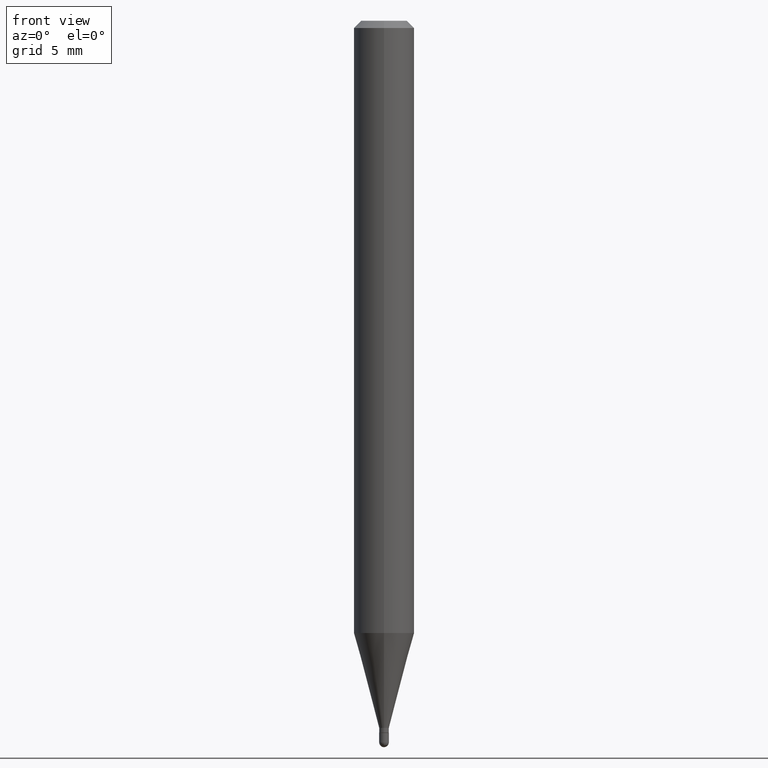
[diagram: clean part render]
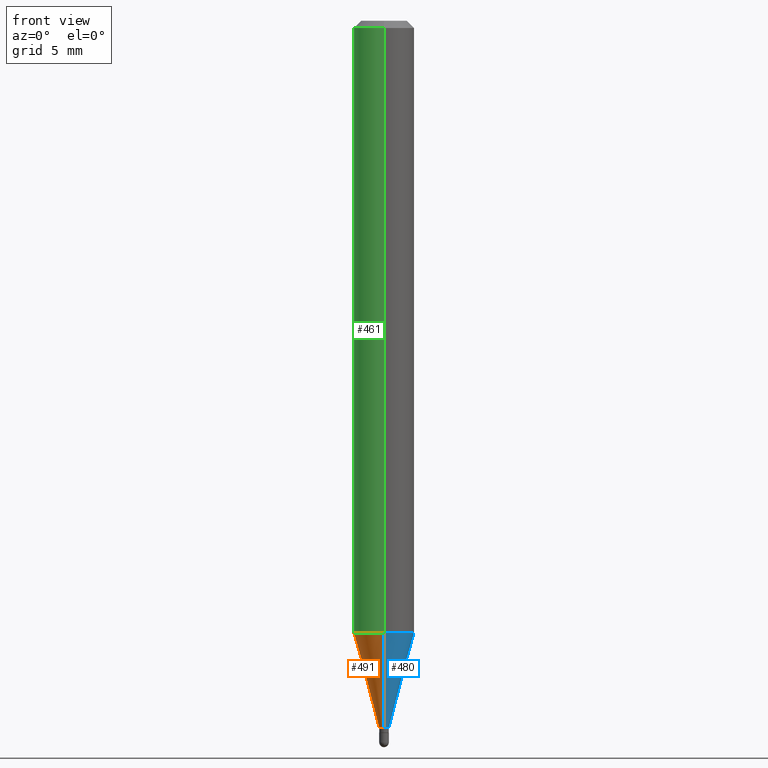
[diagram: same view with three faces highlighted in distinct colors, each labeled with its STEP entity id]
A machine part, front view with three faces highlighted in distinct colors.
Their STEP definitions:

[orange] entity #491 — the highlighted conical surface has half-angle 15 deg.
#4 = AXIS2_PLACEMENT_3D ( 'NONE', #403, #311, #114 ) ;
#10 = CIRCLE ( 'NONE', #425, 0.009999999999999923880 ) ;
#24 = VERTEX_POINT ( 'NONE', #48 ) ;
#48 = CARTESIAN_POINT ( 'NONE',  ( 4.440892098500932831E-16, 0.06249999999999556605, -1.264067332602634819 ) ) ;
#59 = EDGE_CURVE ( 'NONE', #120, #24, #395, .T. ) ;
#61 = DIRECTION ( 'NONE',  ( -2.445480303060877688E-29, 3.491464874662722963E-15, 1.000000000000000000 ) ) ;
#98 = DIRECTION ( 'NONE',  ( -6.982962677686265922E-15, -1.000000000000000000, 4.370956789862821150E-15 ) ) ;
#101 = EDGE_CURVE ( 'NONE', #24, #324, #339, .T. ) ;
#114 = DIRECTION ( 'NONE',  ( -6.982962677686265922E-15, -1.000000000000000000, 0.000000000000000000 ) ) ;
#120 = VERTEX_POINT ( 'NONE', #131 ) ;
#125 = ORIENTED_EDGE ( 'NONE', *, *, #101, .F. ) ;
#129 = VECTOR ( 'NONE', #246, 39.37007874015748854 ) ;
#131 = CARTESIAN_POINT ( 'NONE',  ( 2.575717417130694811E-16, 0.009999999999994827263, -1.459999999999999964 ) ) ;
#144 = VECTOR ( 'NONE', #319, 39.37007874015748143 ) ;
#147 = ORIENTED_EDGE ( 'NONE', *, *, #351, .T. ) ;
#158 = CARTESIAN_POINT ( 'NONE',  ( 7.105427357604516135E-17, 0.009999999999994827263, -1.459999999999999964 ) ) ;
#175 = CARTESIAN_POINT ( 'NONE',  ( -6.982962677682643127E-17, -0.01000000000000502050, -1.459999999999999964 ) ) ;
#184 = VERTEX_POINT ( 'NONE', #175 ) ;
#211 = CARTESIAN_POINT ( 'NONE',  ( -6.982962677682643127E-17, -0.01000000000000502050, -1.459999999999999964 ) ) ;
#224 = EDGE_CURVE ( 'NONE', #184, #324, #404, .T. ) ;
#227 = EDGE_LOOP ( 'NONE', ( #344, #147, #236, #125 ) ) ;
#236 = ORIENTED_EDGE ( 'NONE', *, *, #224, .T. ) ;
#246 = DIRECTION ( 'NONE',  ( -1.807323732225332111E-15, -0.2588190451025184635, 0.9659258262890689783 ) ) ;
#311 = DIRECTION ( 'NONE',  ( -2.445480303060877688E-29, 3.491464874662722963E-15, 1.000000000000000000 ) ) ;
#319 = DIRECTION ( 'NONE',  ( 1.839019923739602287E-15, 0.2588190451025252359, 0.9659258262890670910 ) ) ;
#324 = VERTEX_POINT ( 'NONE', #418 ) ;
#339 = CIRCLE ( 'NONE', #489, 0.06250000000000000000 ) ;
#344 = ORIENTED_EDGE ( 'NONE', *, *, #59, .F. ) ;
#349 = DIRECTION ( 'NONE',  ( -6.982962677686265922E-15, -1.000000000000000000, 0.000000000000000000 ) ) ;
#351 = EDGE_CURVE ( 'NONE', #120, #184, #10, .T. ) ;
#368 = CARTESIAN_POINT ( 'NONE',  ( 3.091251763622446182E-29, -4.413446690990699411E-15, -1.264067332602634597 ) ) ;
#395 = LINE ( 'NONE', #158, #144 ) ;
#403 = CARTESIAN_POINT ( 'NONE',  ( 3.570401242468881823E-29, -5.097538717007575896E-15, -1.459999999999999964 ) ) ;
#404 = LINE ( 'NONE', #211, #129 ) ;
#418 = CARTESIAN_POINT ( 'NONE',  ( -4.364351673553606573E-16, -0.06250000000000441314, -1.264067332602634375 ) ) ;
#420 = CARTESIAN_POINT ( 'NONE',  ( 3.570401242468881823E-29, -5.097538717007575896E-15, -1.459999999999999964 ) ) ;
#425 = AXIS2_PLACEMENT_3D ( 'NONE', #420, #455, #349 ) ;
#442 = CONICAL_SURFACE ( 'NONE', #4, 0.009999999999999923880, 0.2617993877991505736 ) ;
#455 = DIRECTION ( 'NONE',  ( -2.445480303060877688E-29, 3.491464874662722963E-15, 1.000000000000000000 ) ) ;
#481 = FACE_OUTER_BOUND ( 'NONE', #227, .T. ) ;
#489 = AXIS2_PLACEMENT_3D ( 'NONE', #368, #61, #98 ) ;
#491 = ADVANCED_FACE ( 'NONE', ( #481 ), #442, .T. ) ;

[blue] entity #480 — the highlighted conical surface has half-angle 15 deg.
#21 = AXIS2_PLACEMENT_3D ( 'NONE', #292, #93, #332 ) ;
#24 = VERTEX_POINT ( 'NONE', #48 ) ;
#37 = EDGE_LOOP ( 'NONE', ( #379, #274, #67, #499 ) ) ;
#48 = CARTESIAN_POINT ( 'NONE',  ( 4.440892098500932831E-16, 0.06249999999999556605, -1.264067332602634819 ) ) ;
#59 = EDGE_CURVE ( 'NONE', #120, #24, #395, .T. ) ;
#67 = ORIENTED_EDGE ( 'NONE', *, *, #118, .F. ) ;
#93 = DIRECTION ( 'NONE',  ( -2.445480303060877688E-29, 3.491464874662722963E-15, 1.000000000000000000 ) ) ;
#110 = CARTESIAN_POINT ( 'NONE',  ( 3.570401242468881823E-29, -5.097538717007575896E-15, -1.459999999999999964 ) ) ;
#116 = DIRECTION ( 'NONE',  ( -6.982962677686265922E-15, -1.000000000000000000, 0.000000000000000000 ) ) ;
#118 = EDGE_CURVE ( 'NONE', #324, #24, #244, .T. ) ;
#120 = VERTEX_POINT ( 'NONE', #131 ) ;
#129 = VECTOR ( 'NONE', #246, 39.37007874015748854 ) ;
#131 = CARTESIAN_POINT ( 'NONE',  ( 2.575717417130694811E-16, 0.009999999999994827263, -1.459999999999999964 ) ) ;
#144 = VECTOR ( 'NONE', #319, 39.37007874015748143 ) ;
#158 = CARTESIAN_POINT ( 'NONE',  ( 7.105427357604516135E-17, 0.009999999999994827263, -1.459999999999999964 ) ) ;
#175 = CARTESIAN_POINT ( 'NONE',  ( -6.982962677682643127E-17, -0.01000000000000502050, -1.459999999999999964 ) ) ;
#184 = VERTEX_POINT ( 'NONE', #175 ) ;
#211 = CARTESIAN_POINT ( 'NONE',  ( -6.982962677682643127E-17, -0.01000000000000502050, -1.459999999999999964 ) ) ;
#224 = EDGE_CURVE ( 'NONE', #184, #324, #404, .T. ) ;
#244 = CIRCLE ( 'NONE', #21, 0.06250000000000000000 ) ;
#246 = DIRECTION ( 'NONE',  ( -1.807323732225332111E-15, -0.2588190451025184635, 0.9659258262890689783 ) ) ;
#247 = FACE_OUTER_BOUND ( 'NONE', #37, .T. ) ;
#274 = ORIENTED_EDGE ( 'NONE', *, *, #59, .T. ) ;
#292 = CARTESIAN_POINT ( 'NONE',  ( 3.091251763622446182E-29, -4.413446690990699411E-15, -1.264067332602634597 ) ) ;
#300 = DIRECTION ( 'NONE',  ( -2.445480303060877688E-29, 3.491464874662722963E-15, 1.000000000000000000 ) ) ;
#312 = EDGE_CURVE ( 'NONE', #184, #120, #355, .T. ) ;
#315 = CONICAL_SURFACE ( 'NONE', #341, 0.009999999999999923880, 0.2617993877991505736 ) ;
#319 = DIRECTION ( 'NONE',  ( 1.839019923739602287E-15, 0.2588190451025252359, 0.9659258262890670910 ) ) ;
#324 = VERTEX_POINT ( 'NONE', #418 ) ;
#329 = DIRECTION ( 'NONE',  ( -2.445480303060877688E-29, 3.491464874662722963E-15, 1.000000000000000000 ) ) ;
#330 = AXIS2_PLACEMENT_3D ( 'NONE', #110, #300, #377 ) ;
#332 = DIRECTION ( 'NONE',  ( -6.982962677686265922E-15, -1.000000000000000000, 4.370956789862821150E-15 ) ) ;
#341 = AXIS2_PLACEMENT_3D ( 'NONE', #471, #329, #116 ) ;
#355 = CIRCLE ( 'NONE', #330, 0.009999999999999923880 ) ;
#377 = DIRECTION ( 'NONE',  ( -6.982962677686265922E-15, -1.000000000000000000, 0.000000000000000000 ) ) ;
#379 = ORIENTED_EDGE ( 'NONE', *, *, #312, .T. ) ;
#395 = LINE ( 'NONE', #158, #144 ) ;
#404 = LINE ( 'NONE', #211, #129 ) ;
#418 = CARTESIAN_POINT ( 'NONE',  ( -4.364351673553606573E-16, -0.06250000000000441314, -1.264067332602634375 ) ) ;
#471 = CARTESIAN_POINT ( 'NONE',  ( 3.570401242468881823E-29, -5.097538717007575896E-15, -1.459999999999999964 ) ) ;
#480 = ADVANCED_FACE ( 'NONE', ( #247 ), #315, .T. ) ;
#499 = ORIENTED_EDGE ( 'NONE', *, *, #224, .F. ) ;

[green] entity #461 — the highlighted cylindrical surface (edge-blend (fillet) strip) has radius 1.5875 mm, axis along (-0, 0, 1).
#24 = VERTEX_POINT ( 'NONE', #48 ) ;
#35 = EDGE_LOOP ( 'NONE', ( #109, #225, #151, #221 ) ) ;
#42 = CARTESIAN_POINT ( 'NONE',  ( 4.440892098500936776E-16, 0.06249999999999993755, -0.01500000000000022669 ) ) ;
#43 = VERTEX_POINT ( 'NONE', #42 ) ;
#48 = CARTESIAN_POINT ( 'NONE',  ( 4.440892098500932831E-16, 0.06249999999999556605, -1.264067332602634819 ) ) ;
#51 = DIRECTION ( 'NONE',  ( -6.982962677686265922E-15, -1.000000000000000000, 3.491464874662722963E-15 ) ) ;
#55 = LINE ( 'NONE', #154, #210 ) ;
#56 = CARTESIAN_POINT ( 'NONE',  ( -4.364351673553912750E-16, -0.06250000000000005551, -0.01499999999999979128 ) ) ;
#61 = DIRECTION ( 'NONE',  ( -2.445480303060877688E-29, 3.491464874662722963E-15, 1.000000000000000000 ) ) ;
#98 = DIRECTION ( 'NONE',  ( -6.982962677686265922E-15, -1.000000000000000000, 4.370956789862821150E-15 ) ) ;
#101 = EDGE_CURVE ( 'NONE', #24, #324, #339, .T. ) ;
#109 = ORIENTED_EDGE ( 'NONE', *, *, #476, .F. ) ;
#128 = CARTESIAN_POINT ( 'NONE',  ( -4.364351673553916201E-16, -0.06250000000000000000, 2.182165546664201852E-16 ) ) ;
#149 = VERTEX_POINT ( 'NONE', #56 ) ;
#151 = ORIENTED_EDGE ( 'NONE', *, *, #198, .T. ) ;
#154 = CARTESIAN_POINT ( 'NONE',  ( 4.440892098500625669E-16, 0.06250000000000000000, -2.182165546664201852E-16 ) ) ;
#163 = FACE_OUTER_BOUND ( 'NONE', #35, .T. ) ;
#198 = EDGE_CURVE ( 'NONE', #324, #149, #370, .T. ) ;
#210 = VECTOR ( 'NONE', #430, 39.37007874015748143 ) ;
#221 = ORIENTED_EDGE ( 'NONE', *, *, #275, .F. ) ;
#225 = ORIENTED_EDGE ( 'NONE', *, *, #101, .T. ) ;
#233 = DIRECTION ( 'NONE',  ( -2.445480303060877688E-29, 3.491464874662722963E-15, 1.000000000000000000 ) ) ;
#268 = DIRECTION ( 'NONE',  ( -6.982962677686265922E-15, -1.000000000000000000, 3.483106191921935554E-15 ) ) ;
#275 = EDGE_CURVE ( 'NONE', #43, #149, #409, .T. ) ;
#304 = CARTESIAN_POINT ( 'NONE',  ( 3.668220454591318687E-31, -5.237197311994087797E-17, -0.01500000000000000812 ) ) ;
#324 = VERTEX_POINT ( 'NONE', #418 ) ;
#339 = CIRCLE ( 'NONE', #489, 0.06250000000000000000 ) ;
#352 = DIRECTION ( 'NONE',  ( -2.445480303060877688E-29, 3.491464874662722963E-15, 1.000000000000000000 ) ) ;
#364 = CYLINDRICAL_SURFACE ( 'NONE', #378, 0.06250000000000000000 ) ;
#367 = CARTESIAN_POINT ( 'NONE',  ( 0.000000000000000000, 0.000000000000000000, 0.000000000000000000 ) ) ;
#368 = CARTESIAN_POINT ( 'NONE',  ( 3.091251763622446182E-29, -4.413446690990699411E-15, -1.264067332602634597 ) ) ;
#370 = LINE ( 'NONE', #128, #468 ) ;
#378 = AXIS2_PLACEMENT_3D ( 'NONE', #367, #233, #51 ) ;
#388 = AXIS2_PLACEMENT_3D ( 'NONE', #304, #352, #268 ) ;
#409 = CIRCLE ( 'NONE', #388, 0.06250000000000000000 ) ;
#418 = CARTESIAN_POINT ( 'NONE',  ( -4.364351673553606573E-16, -0.06250000000000441314, -1.264067332602634375 ) ) ;
#430 = DIRECTION ( 'NONE',  ( -2.445480303060877688E-29, 3.491464874662722568E-15, 1.000000000000000000 ) ) ;
#447 = DIRECTION ( 'NONE',  ( -2.445480303060877688E-29, 3.491464874662722568E-15, 1.000000000000000000 ) ) ;
#461 = ADVANCED_FACE ( 'NONE', ( #163 ), #364, .T. ) ;
#468 = VECTOR ( 'NONE', #447, 39.37007874015748143 ) ;
#476 = EDGE_CURVE ( 'NONE', #24, #43, #55, .T. ) ;
#489 = AXIS2_PLACEMENT_3D ( 'NONE', #368, #61, #98 ) ;